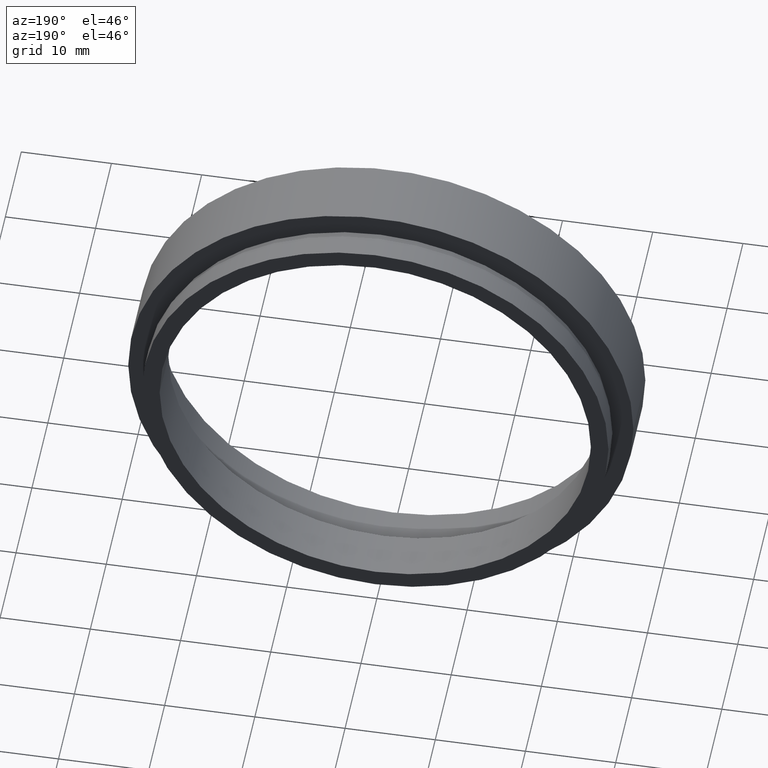
[diagram: clean part render]
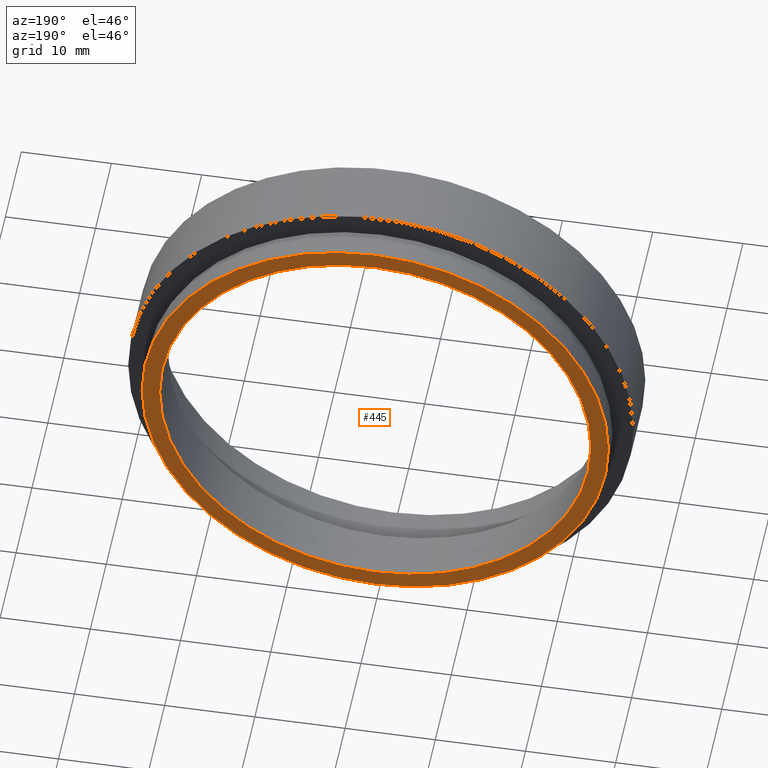
[diagram: same view with one face highlighted and labeled with its STEP entity id]
A machine part, auxiliary view. The second image highlights one B-rep face of the part: STEP entity #445.
In plain terms, the highlighted planar face has unit normal (0, -1, 0).
Its self-contained STEP definition (entity closure, byte-faithful):
#25 = DIRECTION ( 'NONE',  ( -1.000000000000000000, -1.451651444332056200E-016, 0.0000000000000000000 ) ) ;
#52 = DIRECTION ( 'NONE',  ( -1.224646799147351000E-016, 1.000000000000000000, -0.0000000000000000000 ) ) ;
#54 = CIRCLE ( 'NONE', #173, 23.89999999999999900 ) ;
#60 = EDGE_CURVE ( 'NONE', #379, #368, #54, .T. ) ;
#62 = CARTESIAN_POINT ( 'NONE',  ( 7.208293393765502500E-016, 10.99999999999999600, 0.0000000000000000000 ) ) ;
#91 = DIRECTION ( 'NONE',  ( -1.000000000000000000, -1.451651444332056200E-016, 0.0000000000000000000 ) ) ;
#109 = AXIS2_PLACEMENT_3D ( 'NONE', #171, #120, #25 ) ;
#120 = DIRECTION ( 'NONE',  ( -1.224646799147351000E-016, 1.000000000000000000, -0.0000000000000000000 ) ) ;
#145 = CARTESIAN_POINT ( 'NONE',  ( 7.208293393765502500E-016, 10.99999999999999600, 0.0000000000000000000 ) ) ;
#156 = EDGE_CURVE ( 'NONE', #161, #316, #343, .T. ) ;
#161 = VERTEX_POINT ( 'NONE', #545 ) ;
#171 = CARTESIAN_POINT ( 'NONE',  ( 7.208293393765501500E-016, 10.99999999999999600, 0.0000000000000000000 ) ) ;
#173 = AXIS2_PLACEMENT_3D ( 'NONE', #424, #476, #91 ) ;
#217 = PLANE ( 'NONE',  #503 ) ;
#235 = AXIS2_PLACEMENT_3D ( 'NONE', #145, #52, #351 ) ;
#258 = CARTESIAN_POINT ( 'NONE',  ( 23.89999999999999900, 11.00000000000000000, 2.926905849962173700E-015 ) ) ;
#268 = EDGE_CURVE ( 'NONE', #316, #161, #414, .T. ) ;
#285 = AXIS2_PLACEMENT_3D ( 'NONE', #62, #547, #355 ) ;
#291 = ORIENTED_EDGE ( 'NONE', *, *, #156, .T. ) ;
#312 = CARTESIAN_POINT ( 'NONE',  ( -23.89999999999999900, 10.99999999999999300, 0.0000000000000000000 ) ) ;
#316 = VERTEX_POINT ( 'NONE', #548 ) ;
#329 = EDGE_LOOP ( 'NONE', ( #447, #363 ) ) ;
#340 = CIRCLE ( 'NONE', #109, 23.89999999999999900 ) ;
#343 = CIRCLE ( 'NONE', #235, 25.85000000000000100 ) ;
#351 = DIRECTION ( 'NONE',  ( -1.000000000000000000, -1.342145822806040300E-016, 0.0000000000000000000 ) ) ;
#355 = DIRECTION ( 'NONE',  ( -1.000000000000000000, -1.342145822806040300E-016, 0.0000000000000000000 ) ) ;
#363 = ORIENTED_EDGE ( 'NONE', *, *, #60, .F. ) ;
#365 = DIRECTION ( 'NONE',  ( 1.000000000000000000, 1.224646799147351000E-016, 0.0000000000000000000 ) ) ;
#368 = VERTEX_POINT ( 'NONE', #312 ) ;
#379 = VERTEX_POINT ( 'NONE', #258 ) ;
#384 = EDGE_LOOP ( 'NONE', ( #564, #291 ) ) ;
#414 = CIRCLE ( 'NONE', #285, 25.85000000000000100 ) ;
#424 = CARTESIAN_POINT ( 'NONE',  ( 7.208293393765501500E-016, 10.99999999999999600, 0.0000000000000000000 ) ) ;
#429 = EDGE_CURVE ( 'NONE', #368, #379, #340, .T. ) ;
#445 = ADVANCED_FACE ( 'NONE', ( #498, #482 ), #217, .F. ) ;
#447 = ORIENTED_EDGE ( 'NONE', *, *, #429, .F. ) ;
#476 = DIRECTION ( 'NONE',  ( -1.224646799147351000E-016, 1.000000000000000000, -0.0000000000000000000 ) ) ;
#482 = FACE_OUTER_BOUND ( 'NONE', #384, .T. ) ;
#498 = FACE_BOUND ( 'NONE', #329, .T. ) ;
#503 = AXIS2_PLACEMENT_3D ( 'NONE', #509, #604, #365 ) ;
#509 = CARTESIAN_POINT ( 'NONE',  ( 23.89999999999999900, 11.00000000000000000, 0.0000000000000000000 ) ) ;
#545 = CARTESIAN_POINT ( 'NONE',  ( 25.85000000000000100, 11.00000000000000000, 3.165711975795908200E-015 ) ) ;
#547 = DIRECTION ( 'NONE',  ( -1.224646799147351000E-016, 1.000000000000000000, -0.0000000000000000000 ) ) ;
#548 = CARTESIAN_POINT ( 'NONE',  ( -25.85000000000000100, 10.99999999999999300, 0.0000000000000000000 ) ) ;
#564 = ORIENTED_EDGE ( 'NONE', *, *, #268, .T. ) ;
#604 = DIRECTION ( 'NONE',  ( 1.224646799147351000E-016, -1.000000000000000000, 0.0000000000000000000 ) ) ;